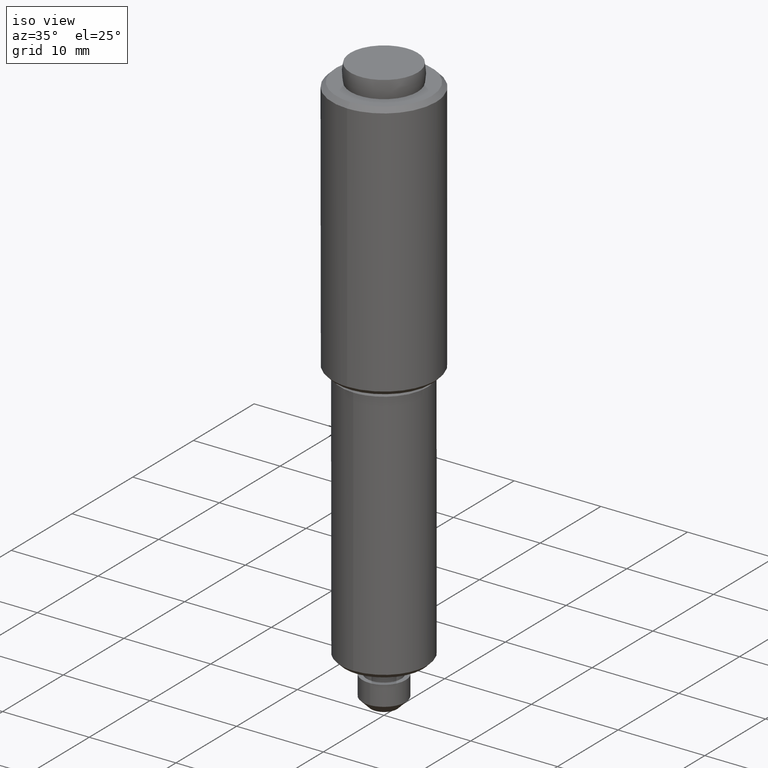
[diagram: clean part render]
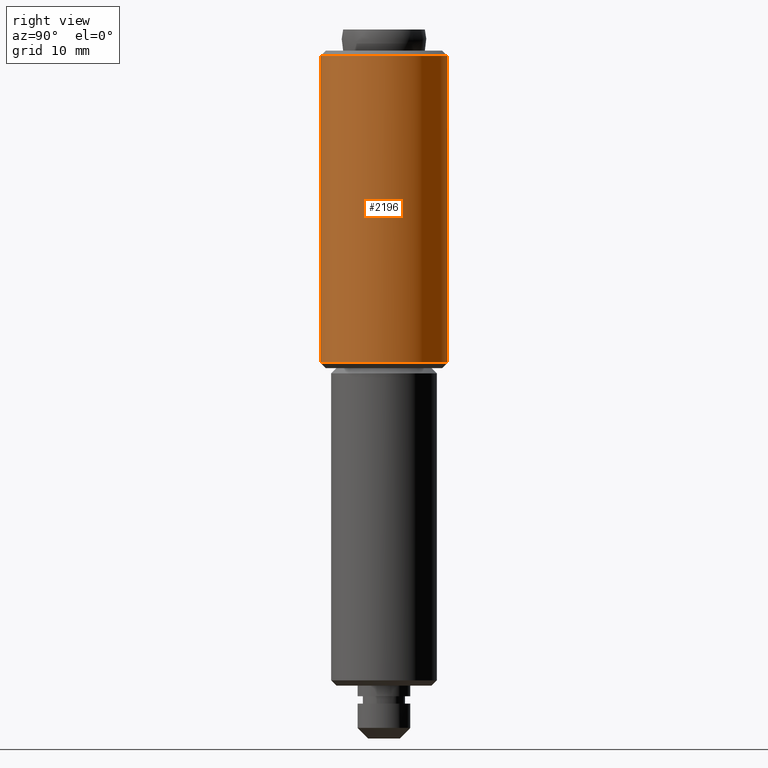
[diagram: tour spotlight — one face highlighted and labeled with its STEP entity id]
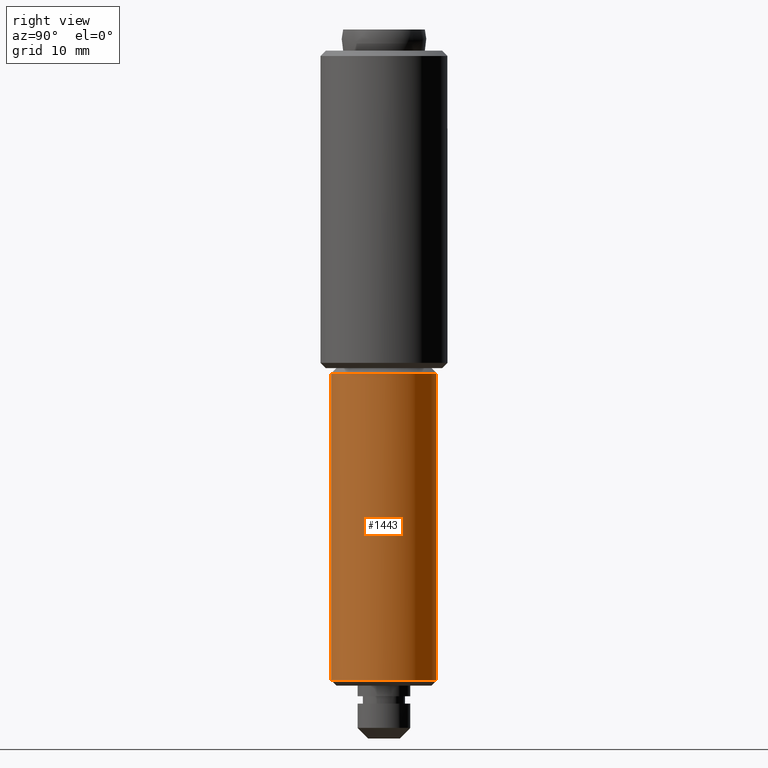
[diagram: tour spotlight — one face highlighted and labeled with its STEP entity id]
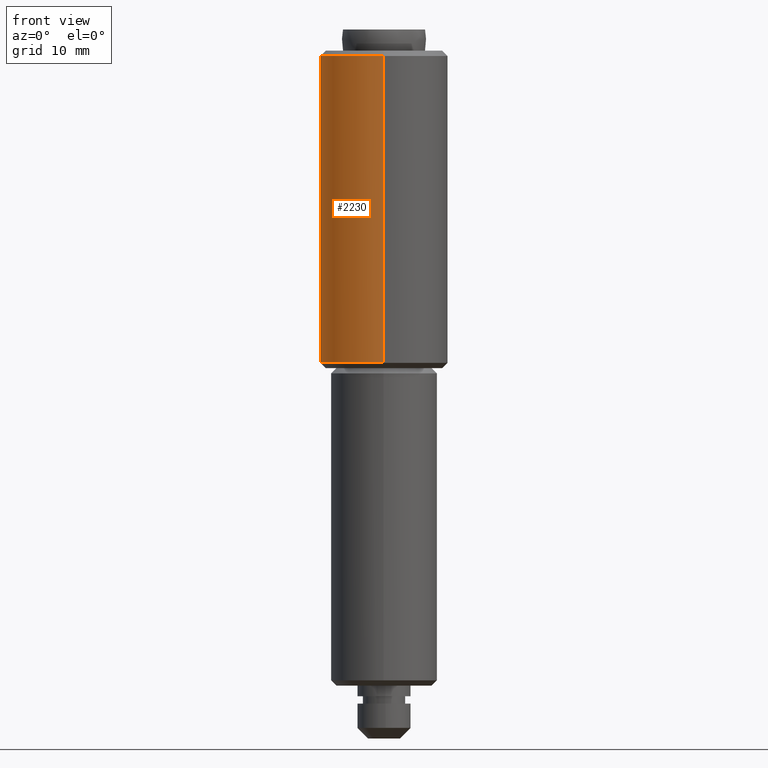
[diagram: tour spotlight — one face highlighted and labeled with its STEP entity id]
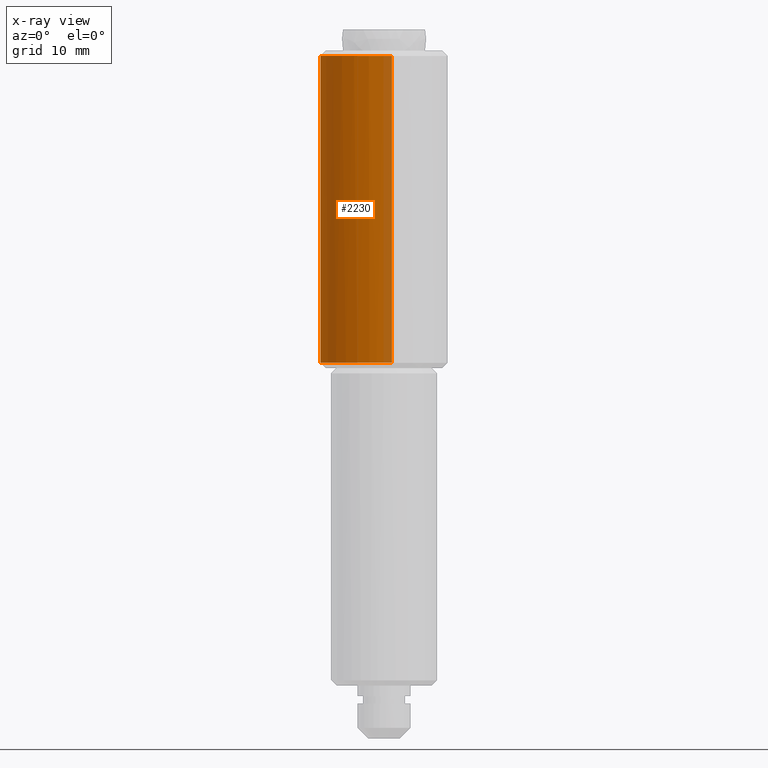
[diagram: x-ray of the same camera — body ghosted, this tour face saturated]
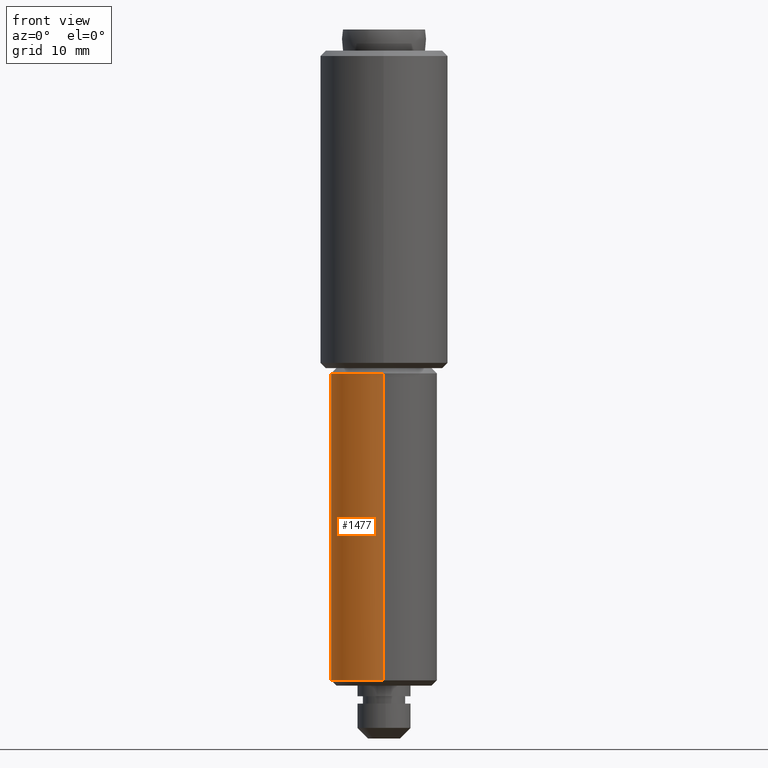
[diagram: tour spotlight — one face highlighted and labeled with its STEP entity id]
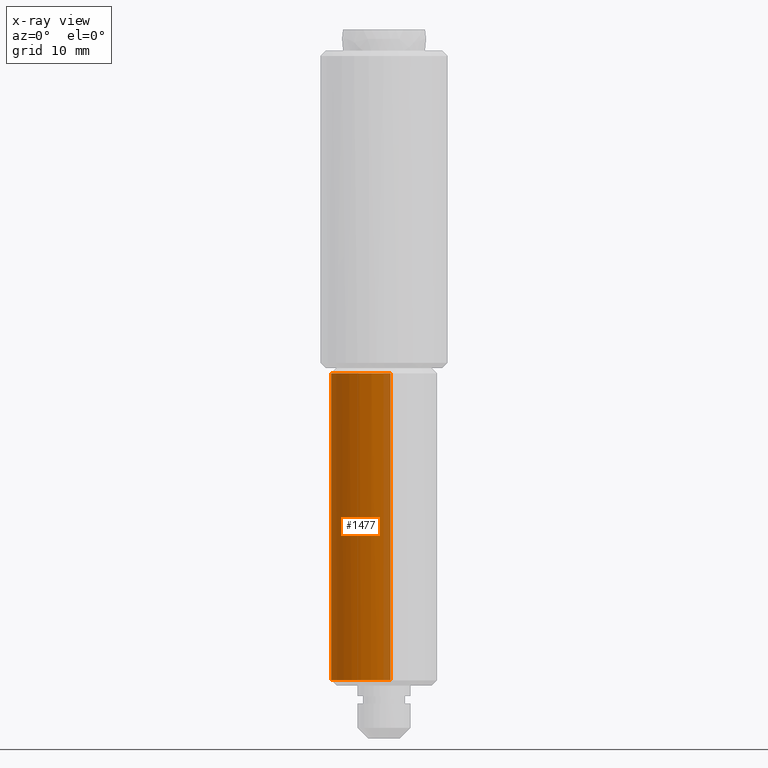
[diagram: x-ray of the same camera — body ghosted, this tour face saturated]
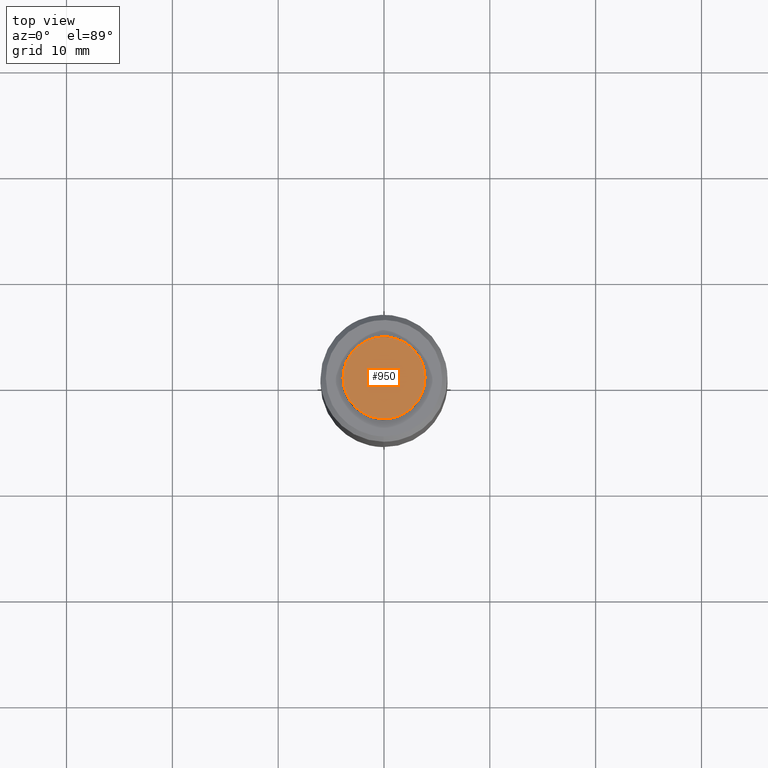
[diagram: tour spotlight — one face highlighted and labeled with its STEP entity id]
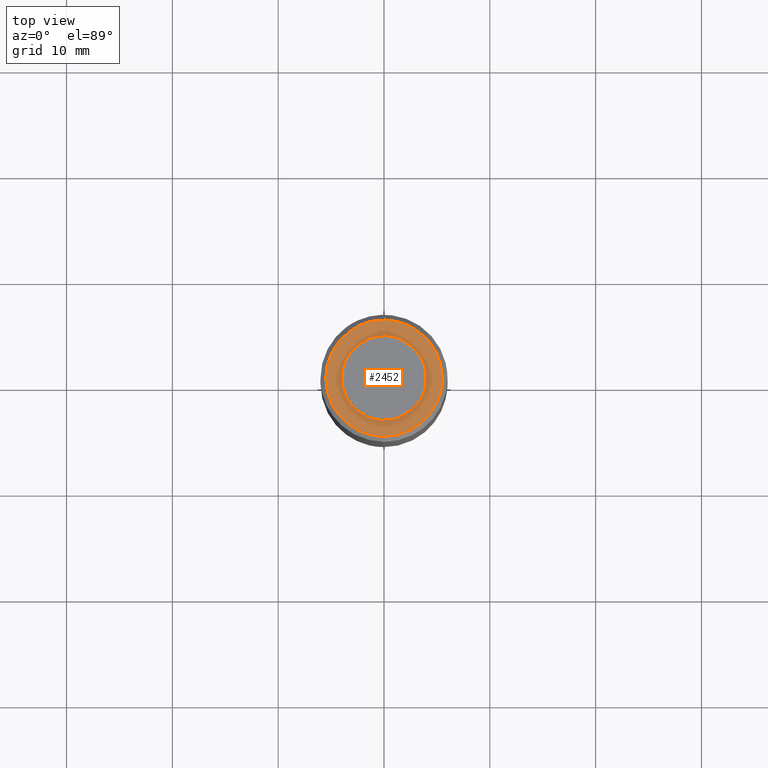
[diagram: tour spotlight — one face highlighted and labeled with its STEP entity id]
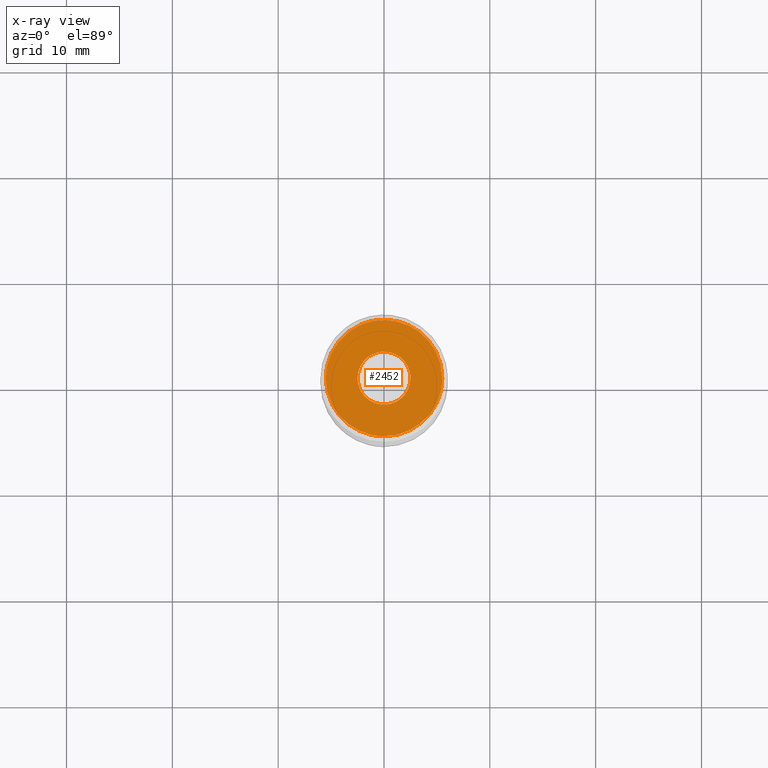
[diagram: x-ray of the same camera — body ghosted, this tour face saturated]
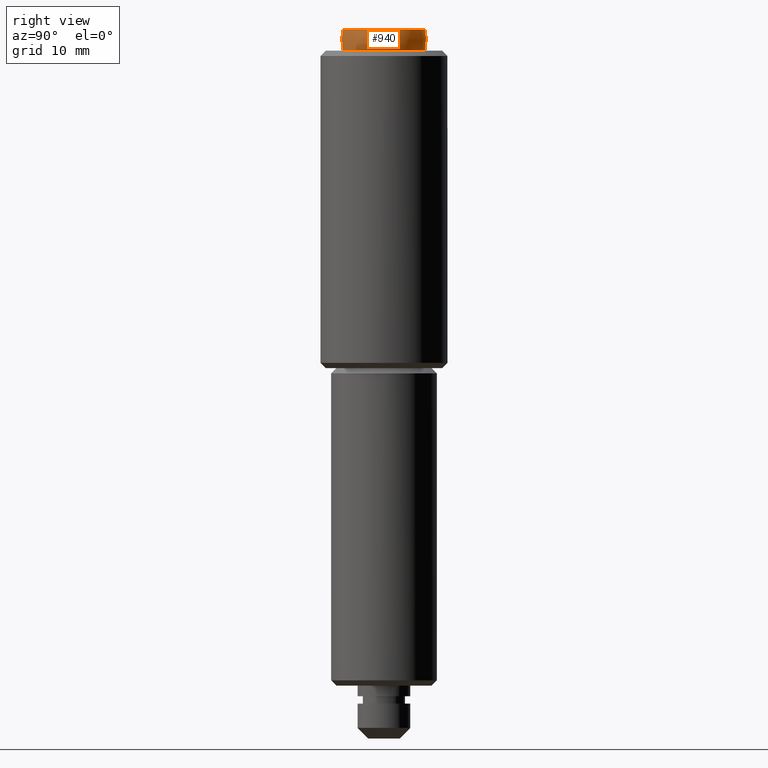
[diagram: tour spotlight — one face highlighted and labeled with its STEP entity id]
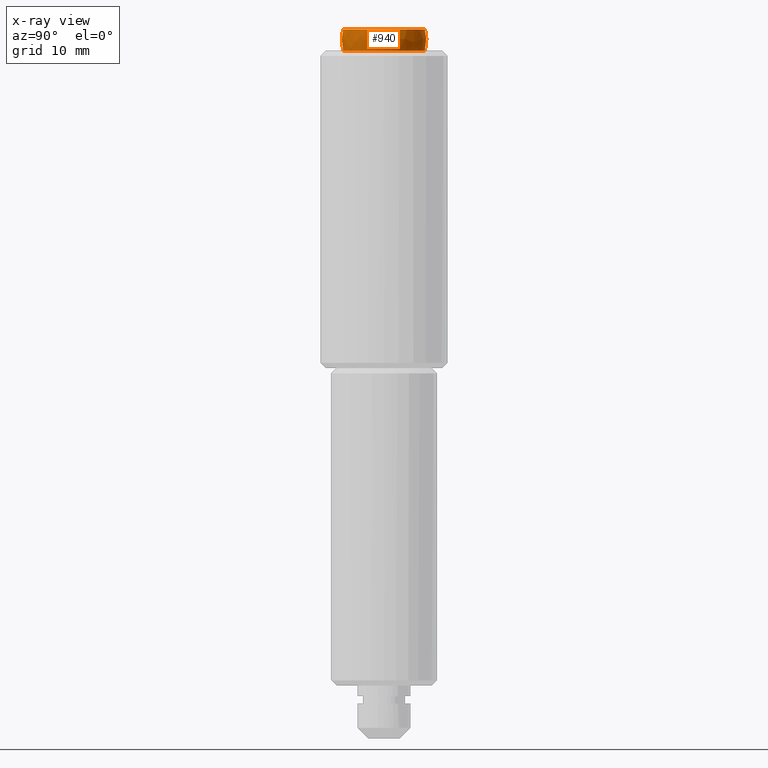
[diagram: x-ray of the same camera — body ghosted, this tour face saturated]
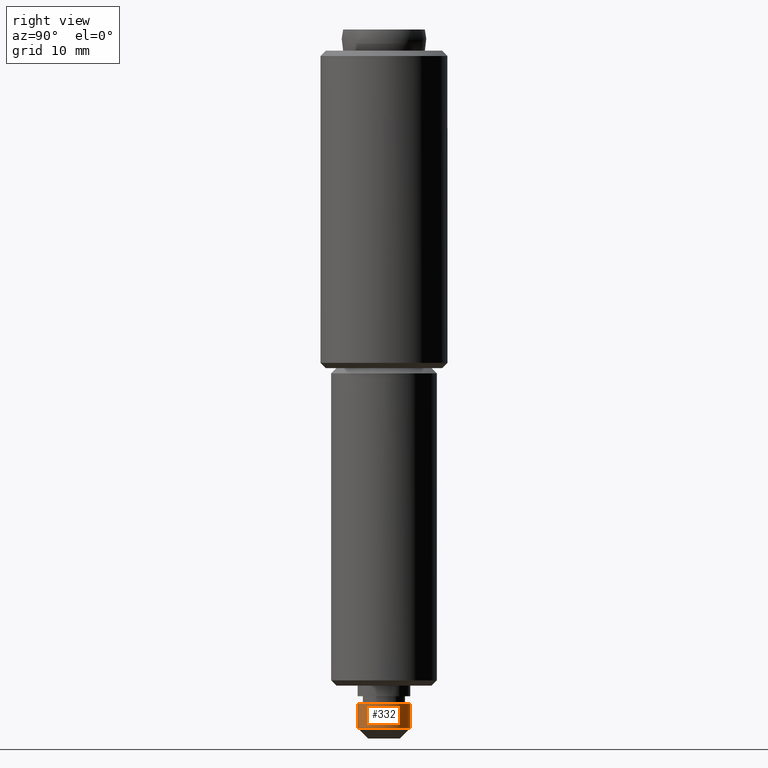
[diagram: tour spotlight — one face highlighted and labeled with its STEP entity id]
A machine part: a face-by-face anatomy tour. The part has 34 B-rep faces; the first image is the clean iso view, then the 8 largest visible faces are spotlighted one at a time (largest first), each with its STEP entity span.

Face 1 — right view, entity #2196. In plain terms, the highlighted face is a freeform B-spline surface patch.
Definition (entity closure, byte-faithful):
#1765=CARTESIAN_POINT('',(0.744758561494347,5.953598465213299,64.500000000000000));
#1766=VERTEX_POINT('',#1765);
#1823=CARTESIAN_POINT('',(-0.052359213022021,-5.999771538384714,64.500000000000028));
#1824=VERTEX_POINT('',#1823);
#1830=CARTESIAN_POINT('',(6.0,0.0,64.500000000000000));
#1831=VERTEX_POINT('',#1830);
#1832=CARTESIAN_POINT('',(6.0,0.0,64.500000000000000));
#1833=CARTESIAN_POINT('',(6.0,-6.0,64.500000000000000));
#1834=CARTESIAN_POINT('',(0.0,-6.0,64.500000000000000));
#1835=CARTESIAN_POINT('',(-0.026180104987775,-6.0,64.499999999999986));
#1836=CARTESIAN_POINT('',(-0.052359213022021,-5.999771538384714,64.500000000000028));
#1844=(BOUNDED_CURVE()B_SPLINE_CURVE(2,(#1832,#1833,#1834,#1835,#1836),.UNSPECIFIED.,.F.,.U.)B_SPLINE_CURVE_WITH_KNOTS((3,2,3),(0.500000000000000,0.750000000000000,0.751539894338719),.UNSPECIFIED.)CURVE()GEOMETRIC_REPRESENTATION_ITEM()RATIONAL_B_SPLINE_CURVE((1.0,0.707106781186548,1.0,0.998195901562000,0.996414028091769))REPRESENTATION_ITEM(''));
#1845=EDGE_CURVE('',#1831,#1824,#1844,.T.);
#1847=CARTESIAN_POINT('',(0.744758561494347,5.953598465213299,64.499999999999986));
#1848=CARTESIAN_POINT('',(6.0,5.296200073825249,64.500000000000000));
#1849=CARTESIAN_POINT('',(6.0,0.0,64.500000000000000));
#1857=(BOUNDED_CURVE()B_SPLINE_CURVE(2,(#1847,#1848,#1849),.UNSPECIFIED.,.F.,.U.)B_SPLINE_CURVE_WITH_KNOTS((3,3),(0.271473661255216,0.500000000000000),.UNSPECIFIED.)CURVE()GEOMETRIC_REPRESENTATION_ITEM()RATIONAL_B_SPLINE_CURVE((0.954005949807644,0.732264740245548,1.0))REPRESENTATION_ITEM(''));
#1858=EDGE_CURVE('',#1766,#1831,#1857,.T.);
#2048=CARTESIAN_POINT('',(0.744768012531684,5.953597282946639,35.500000000000000));
#2049=VERTEX_POINT('',#2048);
#2065=CARTESIAN_POINT('',(6.0,0.0,35.500000000000000));
#2066=VERTEX_POINT('',#2065);
#2067=CARTESIAN_POINT('',(6.0,0.0,35.500000000000000));
#2068=CARTESIAN_POINT('',(6.000000000000003,5.296191600806900,35.500000000000000));
#2069=CARTESIAN_POINT('',(0.744768012531684,5.953597282946640,35.500000000000007));
#2077=(BOUNDED_CURVE()B_SPLINE_CURVE(2,(#2067,#2068,#2069),.UNSPECIFIED.,.F.,.U.)B_SPLINE_CURVE_WITH_KNOTS((3,3),(0.500000000000000,0.728526071026314),.UNSPECIFIED.)CURVE()GEOMETRIC_REPRESENTATION_ITEM()RATIONAL_B_SPLINE_CURVE((1.0,0.732265053897245,0.954005430268926))REPRESENTATION_ITEM(''));
#2078=EDGE_CURVE('',#2066,#2049,#2077,.T.);
#2080=CARTESIAN_POINT('',(-0.052359213044773,-5.999771538384551,35.500000000000000));
#2081=VERTEX_POINT('',#2080);
#2082=CARTESIAN_POINT('',(-0.052359213044773,-5.999771538384551,35.500000000000000));
#2083=CARTESIAN_POINT('',(-0.026180104978742,-6.0,35.500000000000000));
#2084=CARTESIAN_POINT('',(0.0,-6.0,35.500000000000000));
#2085=CARTESIAN_POINT('',(6.0,-6.0,35.500000000000000));
#2086=CARTESIAN_POINT('',(6.0,0.0,35.500000000000000));
#2094=(BOUNDED_CURVE()B_SPLINE_CURVE(2,(#2082,#2083,#2084,#2085,#2086),.UNSPECIFIED.,.F.,.U.)B_SPLINE_CURVE_WITH_KNOTS((3,2,3),(0.248460105661811,0.250000000000000,0.500000000000000),.UNSPECIFIED.)CURVE()GEOMETRIC_REPRESENTATION_ITEM()RATIONAL_B_SPLINE_CURVE((0.996414028092996,0.998195901562621,1.0,0.707106781186548,1.0))REPRESENTATION_ITEM(''));
#2095=EDGE_CURVE('',#2081,#2066,#2094,.T.);
#2158=CARTESIAN_POINT('',(0.660702988506187,5.964113436103609,65.225000000000009));
#2159=CARTESIAN_POINT('',(0.702631995100168,5.958868307583474,65.225000000000009));
#2160=CARTESIAN_POINT('',(6.046396983014668,5.290387548799326,65.225000000000009));
#2161=CARTESIAN_POINT('',(5.999771538385026,-0.052359212990243,65.225000000000009));
#2162=CARTESIAN_POINT('',(5.947412325394783,-6.052130751375269,65.225000000000009));
#2163=CARTESIAN_POINT('',(-0.092972838205489,-5.999417108647267,65.224999999999980));
#2164=CARTESIAN_POINT('',(-0.133359347750879,-5.999064660917934,65.224999999999980));
#2165=CARTESIAN_POINT('',(0.660702988506187,5.964113436103609,34.756875000000008));
#2166=CARTESIAN_POINT('',(0.702631995100168,5.958868307583474,34.756874999999987));
#2167=CARTESIAN_POINT('',(6.046396983014668,5.290387548799326,34.756874999999994));
#2168=CARTESIAN_POINT('',(5.999771538385026,-0.052359212990243,34.756874999999987));
#2169=CARTESIAN_POINT('',(5.947412325394783,-6.052130751375269,34.756874999999994));
#2170=CARTESIAN_POINT('',(-0.092972838205489,-5.999417108647267,34.756874999999972));
#2171=CARTESIAN_POINT('',(-0.133359347750879,-5.999064660917934,34.756874999999987));
#2179=(BOUNDED_SURFACE()B_SPLINE_SURFACE(2,1,((#2158,#2165),(#2159,#2166),(#2160,#2167),(#2161,#2168),(#2162,#2169),(#2163,#2170),(#2164,#2171)),.UNSPECIFIED.,.F.,.F.,.U.)B_SPLINE_SURFACE_WITH_KNOTS((3,1,2,1,3),(2,2),(0.0,0.095445533741956,9.241280990939892,19.182406487894170,19.277841343984541),(0.0,30.468125000000040),.UNSPECIFIED.)GEOMETRIC_REPRESENTATION_ITEM()RATIONAL_B_SPLINE_SURFACE(((0.961610431080663,0.961610431080663),(0.959248274635662,0.959248274635662),(0.730538238691624,0.730538238691624),(1.0,1.0),(0.707106781186548,0.707106781186548),(1.002811776412628,1.002811776412628),(1.005623552825256,1.005623552825256)))REPRESENTATION_ITEM('')SURFACE());
#2180=ORIENTED_EDGE('',*,*,#1858,.T.);
#2181=ORIENTED_EDGE('',*,*,#1845,.T.);
#2182=CARTESIAN_POINT('',(-0.052359213022021,-5.999771538384714,64.500000000000028));
#2183=CARTESIAN_POINT('',(-0.052359213044773,-5.999771538384551,35.500000000000000));
#2184=QUASI_UNIFORM_CURVE('',1,(#2182,#2183),.UNSPECIFIED.,.F.,.U.);
#2185=EDGE_CURVE('',#1824,#2081,#2184,.T.);
#2186=ORIENTED_EDGE('',*,*,#2185,.T.);
#2187=ORIENTED_EDGE('',*,*,#2095,.T.);
#2188=ORIENTED_EDGE('',*,*,#2078,.T.);
#2189=CARTESIAN_POINT('',(0.744758561494347,5.953598465213299,64.500000000000000));
#2190=CARTESIAN_POINT('',(0.744768012531684,5.953597282946639,35.500000000000000));
#2191=QUASI_UNIFORM_CURVE('',1,(#2189,#2190),.UNSPECIFIED.,.F.,.U.);
#2192=EDGE_CURVE('',#1766,#2049,#2191,.T.);
#2193=ORIENTED_EDGE('',*,*,#2192,.F.);
#2194=EDGE_LOOP('',(#2180,#2181,#2186,#2187,#2188,#2193));
#2195=FACE_OUTER_BOUND('',#2194,.T.);
#2196=ADVANCED_FACE('',(#2195),#2179,.T.);

Face 2 — right view, entity #1443. In plain terms, the highlighted face is a freeform B-spline surface patch.
Definition (entity closure, byte-faithful):
#1016=CARTESIAN_POINT('',(0.620640010452552,4.961331069121012,34.500000000000000));
#1017=VERTEX_POINT('',#1016);
#1074=CARTESIAN_POINT('',(-0.043632677539347,-4.999809615320394,34.500000000000043));
#1075=VERTEX_POINT('',#1074);
#1081=CARTESIAN_POINT('',(5.0,0.0,34.500000000000000));
#1082=VERTEX_POINT('',#1081);
#1083=CARTESIAN_POINT('',(5.0,0.0,34.500000000000000));
#1084=CARTESIAN_POINT('',(5.000000000000001,-5.000000000000001,34.500000000000000));
#1085=CARTESIAN_POINT('',(0.0,-5.0,34.500000000000000));
#1086=CARTESIAN_POINT('',(-0.021816754198458,-5.0,34.500000000000000));
#1087=CARTESIAN_POINT('',(-0.043632677539347,-4.999809615320394,34.500000000000043));
#1095=(BOUNDED_CURVE()B_SPLINE_CURVE(2,(#1083,#1084,#1085,#1086,#1087),.UNSPECIFIED.,.F.,.U.)B_SPLINE_CURVE_WITH_KNOTS((3,2,3),(0.500000000000000,0.750000000000000,0.751539894341677),.UNSPECIFIED.)CURVE()GEOMETRIC_REPRESENTATION_ITEM()RATIONAL_B_SPLINE_CURVE((1.0,0.707106781186548,1.0,0.998195901558535,0.996414028084924))REPRESENTATION_ITEM(''));
#1096=EDGE_CURVE('',#1082,#1075,#1095,.T.);
#1098=CARTESIAN_POINT('',(0.620640010452552,4.961331069121012,34.499999999999993));
#1099=CARTESIAN_POINT('',(5.000000000000001,4.413493000655387,34.500000000000007));
#1100=CARTESIAN_POINT('',(5.0,0.0,34.500000000000000));
#1108=(BOUNDED_CURVE()B_SPLINE_CURVE(2,(#1098,#1099,#1100),.UNSPECIFIED.,.F.,.U.)B_SPLINE_CURVE_WITH_KNOTS((3,3),(0.271473928974332,0.500000000000000),.UNSPECIFIED.)CURVE()GEOMETRIC_REPRESENTATION_ITEM()RATIONAL_B_SPLINE_CURVE((0.954005430267673,0.732265053898002,1.0))REPRESENTATION_ITEM(''));
#1109=EDGE_CURVE('',#1017,#1082,#1108,.T.);
#1299=CARTESIAN_POINT('',(0.620640010475305,4.961331069118167,5.500000000000000));
#1300=VERTEX_POINT('',#1299);
#1316=CARTESIAN_POINT('',(5.0,0.0,5.500000000000000));
#1317=VERTEX_POINT('',#1316);
#1318=CARTESIAN_POINT('',(5.0,0.0,5.500000000000000));
#1319=CARTESIAN_POINT('',(4.999999999999999,4.413493000614615,5.500000000000000));
#1320=CARTESIAN_POINT('',(0.620640010475305,4.961331069118168,5.500000000000001));
#1328=(BOUNDED_CURVE()B_SPLINE_CURVE(2,(#1318,#1319,#1320),.UNSPECIFIED.,.F.,.U.)B_SPLINE_CURVE_WITH_KNOTS((3,3),(0.500000000000000,0.728526071024122),.UNSPECIFIED.)CURVE()GEOMETRIC_REPRESENTATION_ITEM()RATIONAL_B_SPLINE_CURVE((1.0,0.732265053899813,0.954005430264673))REPRESENTATION_ITEM(''));
#1329=EDGE_CURVE('',#1317,#1300,#1328,.T.);
#1331=CARTESIAN_POINT('',(-0.043632677575075,-4.999809615320130,5.500000000000001));
#1332=VERTEX_POINT('',#1331);
#1333=CARTESIAN_POINT('',(-0.043632677575075,-4.999809615320130,5.500000000000001));
#1334=CARTESIAN_POINT('',(-0.021816754186718,-5.0,5.499999999999999));
#1335=CARTESIAN_POINT('',(0.0,-5.0,5.500000000000000));
#1336=CARTESIAN_POINT('',(5.000000000000001,-5.000000000000001,5.500000000000001));
#1337=CARTESIAN_POINT('',(5.0,0.0,5.500000000000000));
#1345=(BOUNDED_CURVE()B_SPLINE_CURVE(2,(#1333,#1334,#1335,#1336,#1337),.UNSPECIFIED.,.F.,.U.)B_SPLINE_CURVE_WITH_KNOTS((3,2,3),(0.248460105659150,0.250000000000000,0.500000000000000),.UNSPECIFIED.)CURVE()GEOMETRIC_REPRESENTATION_ITEM()RATIONAL_B_SPLINE_CURVE((0.996414028086838,0.998195901559504,1.0,0.707106781186548,1.0))REPRESENTATION_ITEM(''));
#1346=EDGE_CURVE('',#1332,#1317,#1345,.T.);
#1409=CARTESIAN_POINT('',(0.620640010399146,4.961331069127693,35.225000000000001));
#1410=CARTESIAN_POINT('',(5.038664152512223,4.408656290666105,35.225000000000016));
#1411=CARTESIAN_POINT('',(4.999809615320855,-0.043632677491869,35.225000000000009));
#1412=CARTESIAN_POINT('',(4.956176937828985,-5.043442292812725,35.225000000000016));
#1413=CARTESIAN_POINT('',(-0.043632677491869,-4.999809615320855,35.225000000000009));
#1414=CARTESIAN_POINT('',(0.620640010399146,4.961331069127693,4.756875000000001));
#1415=CARTESIAN_POINT('',(5.038664152512223,4.408656290666105,4.756875000000001));
#1416=CARTESIAN_POINT('',(4.999809615320855,-0.043632677491869,4.756875000000001));
#1417=CARTESIAN_POINT('',(4.956176937828985,-5.043442292812725,4.756875000000001));
#1418=CARTESIAN_POINT('',(-0.043632677491869,-4.999809615320855,4.756875000000001));
#1426=(BOUNDED_SURFACE()B_SPLINE_SURFACE(2,1,((#1409,#1414),(#1410,#1415),(#1411,#1416),(#1412,#1417),(#1413,#1418)),.UNSPECIFIED.,.F.,.F.,.U.)B_SPLINE_SURFACE_WITH_KNOTS((3,2,3),(2,2),(0.0,7.621529547664946,15.905800795126851),(0.0,30.468125000000011),.UNSPECIFIED.)GEOMETRIC_REPRESENTATION_ITEM()RATIONAL_B_SPLINE_SURFACE(((0.956886118190660,0.956886118190660),(0.730538238691624,0.730538238691624),(1.0,1.0),(0.707106781186548,0.707106781186548),(1.0,1.0)))REPRESENTATION_ITEM('')SURFACE());
#1427=ORIENTED_EDGE('',*,*,#1109,.T.);
#1428=ORIENTED_EDGE('',*,*,#1096,.T.);
#1429=CARTESIAN_POINT('',(-0.043632677539347,-4.999809615320394,34.500000000000043));
#1430=CARTESIAN_POINT('',(-0.043632677575075,-4.999809615320130,5.500000000000001));
#1431=QUASI_UNIFORM_CURVE('',1,(#1429,#1430),.UNSPECIFIED.,.F.,.U.);
#1432=EDGE_CURVE('',#1075,#1332,#1431,.T.);
#1433=ORIENTED_EDGE('',*,*,#1432,.T.);
#1434=ORIENTED_EDGE('',*,*,#1346,.T.);
#1435=ORIENTED_EDGE('',*,*,#1329,.T.);
#1436=CARTESIAN_POINT('',(0.620640010452552,4.961331069121012,34.500000000000000));
#1437=CARTESIAN_POINT('',(0.620640010475305,4.961331069118167,5.500000000000000));
#1438=QUASI_UNIFORM_CURVE('',1,(#1436,#1437),.UNSPECIFIED.,.F.,.U.);
#1439=EDGE_CURVE('',#1017,#1300,#1438,.T.);
#1440=ORIENTED_EDGE('',*,*,#1439,.F.);
#1441=EDGE_LOOP('',(#1427,#1428,#1433,#1434,#1435,#1440));
#1442=FACE_OUTER_BOUND('',#1441,.T.);
#1443=ADVANCED_FACE('',(#1442),#1426,.T.);

Face 3 — front view, entity #2230. An x-ray twin of the same camera follows (body ghosted, this face saturated) — the face is partly hidden behind the body. In plain terms, the highlighted face is a freeform B-spline surface patch.
Definition (entity closure, byte-faithful):
#1763=CARTESIAN_POINT('',(-2.425292591935195,5.487982857436114,64.499999999999304));
#1764=VERTEX_POINT('',#1763);
#1765=CARTESIAN_POINT('',(0.744758561494347,5.953598465213299,64.500000000000000));
#1766=VERTEX_POINT('',#1765);
#1767=CARTESIAN_POINT('',(-2.425292591935196,5.487982857436114,64.499999999999304));
#1768=CARTESIAN_POINT('',(-1.266693703520049,6.0,64.500000000000014));
#1769=CARTESIAN_POINT('',(0.0,6.0,64.500000000000000));
#1770=CARTESIAN_POINT('',(0.373824784392168,5.999999999999999,64.499999999999986));
#1771=CARTESIAN_POINT('',(0.744758561494347,5.953598465213299,64.499999999999986));
#1779=(BOUNDED_CURVE()B_SPLINE_CURVE(2,(#1767,#1768,#1769,#1770,#1771),.UNSPECIFIED.,.F.,.U.)B_SPLINE_CURVE_WITH_KNOTS((3,2,3),(0.181361578459497,0.250000000000000,0.271473661255216),.UNSPECIFIED.)CURVE()GEOMETRIC_REPRESENTATION_ITEM()RATIONAL_B_SPLINE_CURVE((0.883326595751424,0.919585087122910,1.0,0.974842040941000,0.954005949807644))REPRESENTATION_ITEM(''));
#1780=EDGE_CURVE('',#1764,#1766,#1779,.T.);
#1823=CARTESIAN_POINT('',(-0.052359213022021,-5.999771538384714,64.500000000000028));
#1824=VERTEX_POINT('',#1823);
#1881=CARTESIAN_POINT('',(-6.0,0.0,64.500000000000000));
#1882=VERTEX_POINT('',#1881);
#1883=CARTESIAN_POINT('',(-6.0,0.0,64.500000000000000));
#1884=CARTESIAN_POINT('',(-6.0,3.908220015537823,64.500000000000014));
#1885=CARTESIAN_POINT('',(-2.425292591935196,5.487982857436114,64.499999999999304));
#1893=(BOUNDED_CURVE()B_SPLINE_CURVE(2,(#1883,#1884,#1885),.UNSPECIFIED.,.F.,.U.)B_SPLINE_CURVE_WITH_KNOTS((3,3),(0.0,0.181361578459497),.UNSPECIFIED.)CURVE()GEOMETRIC_REPRESENTATION_ITEM()RATIONAL_B_SPLINE_CURVE((1.0,0.787521694063637,0.883326595751424))REPRESENTATION_ITEM(''));
#1894=EDGE_CURVE('',#1882,#1764,#1893,.T.);
#1896=CARTESIAN_POINT('',(-0.052359213022021,-5.999771538384714,64.500000000000028));
#1897=CARTESIAN_POINT('',(-6.000000000000001,-5.947867263443852,64.500000000000000));
#1898=CARTESIAN_POINT('',(-6.0,0.0,64.500000000000000));
#1906=(BOUNDED_CURVE()B_SPLINE_CURVE(2,(#1896,#1897,#1898),.UNSPECIFIED.,.F.,.U.)B_SPLINE_CURVE_WITH_KNOTS((3,3),(0.751539894338719,1.0),.UNSPECIFIED.)CURVE()GEOMETRIC_REPRESENTATION_ITEM()RATIONAL_B_SPLINE_CURVE((0.996414028091769,0.708910879624548,1.0))REPRESENTATION_ITEM(''));
#1907=EDGE_CURVE('',#1824,#1882,#1906,.T.);
#1968=CARTESIAN_POINT('',(-5.845308919046230,1.353648270868739,35.500000000025587));
#1969=VERTEX_POINT('',#1968);
#1970=CARTESIAN_POINT('',(-6.0,0.0,35.500000000000000));
#1971=VERTEX_POINT('',#1970);
#1972=CARTESIAN_POINT('',(-5.845308919046230,1.353648270868739,35.500000000025587));
#1973=CARTESIAN_POINT('',(-6.0,0.685662964304165,35.500000000000000));
#1974=CARTESIAN_POINT('',(-6.0,0.0,35.500000000000000));
#1982=(BOUNDED_CURVE()B_SPLINE_CURVE(2,(#1972,#1973,#1974),.UNSPECIFIED.,.F.,.U.)B_SPLINE_CURVE_WITH_KNOTS((3,3),(0.961422971772483,1.0),.UNSPECIFIED.)CURVE()GEOMETRIC_REPRESENTATION_ITEM()RATIONAL_B_SPLINE_CURVE((0.923556557423140,0.954804200120740,1.0))REPRESENTATION_ITEM(''));
#1983=EDGE_CURVE('',#1969,#1971,#1982,.T.);
#2041=CARTESIAN_POINT('',(-0.052359213351879,5.999771538431189,35.500000000049297));
#2042=VERTEX_POINT('',#2041);
#2048=CARTESIAN_POINT('',(0.744768012531684,5.953597282946639,35.500000000000000));
#2049=VERTEX_POINT('',#2048);
#2050=CARTESIAN_POINT('',(0.744768012531684,5.953597282946639,35.499999999999993));
#2051=CARTESIAN_POINT('',(0.373829565254291,6.000000000000001,35.500000000000007));
#2052=CARTESIAN_POINT('',(0.0,6.0,35.500000000000000));
#2053=CARTESIAN_POINT('',(-0.026180105285428,6.000000000000001,35.500000000000000));
#2054=CARTESIAN_POINT('',(-0.052359213351879,5.999771538431189,35.500000000049290));
#2062=(BOUNDED_CURVE()B_SPLINE_CURVE(2,(#2050,#2051,#2052,#2053,#2054),.UNSPECIFIED.,.F.,.U.)B_SPLINE_CURVE_WITH_KNOTS((3,2,3),(0.728526071026313,0.750000000000000,0.751539894356195),.UNSPECIFIED.)CURVE()GEOMETRIC_REPRESENTATION_ITEM()RATIONAL_B_SPLINE_CURVE((0.954005430268924,0.974841727289301,1.0,0.998195901541525,0.996414028051324))REPRESENTATION_ITEM(''));
#2063=EDGE_CURVE('',#2049,#2042,#2062,.T.);
#2080=CARTESIAN_POINT('',(-0.052359213044773,-5.999771538384551,35.500000000000000));
#2081=VERTEX_POINT('',#2080);
#2097=CARTESIAN_POINT('',(-6.0,0.0,35.500000000000000));
#2098=CARTESIAN_POINT('',(-6.000000000000001,-5.947867263461753,35.499999999999993));
#2099=CARTESIAN_POINT('',(-0.052359213044773,-5.999771538384551,35.500000000000000));
#2107=(BOUNDED_CURVE()B_SPLINE_CURVE(2,(#2097,#2098,#2099),.UNSPECIFIED.,.F.,.U.)B_SPLINE_CURVE_WITH_KNOTS((3,3),(0.0,0.248460105661811),.UNSPECIFIED.)CURVE()GEOMETRIC_REPRESENTATION_ITEM()RATIONAL_B_SPLINE_CURVE((1.0,0.708910879623927,0.996414028092996))REPRESENTATION_ITEM(''));
#2108=EDGE_CURVE('',#1971,#2081,#2107,.T.);
#2127=CARTESIAN_POINT('',(-0.052359213351879,5.999771538431189,35.500000000049297));
#2128=CARTESIAN_POINT('',(-4.778918510675537,5.958523479719795,35.500000000000000));
#2129=CARTESIAN_POINT('',(-5.845308919046230,1.353648270868739,35.500000000025587));
#2137=(BOUNDED_CURVE()B_SPLINE_CURVE(2,(#2127,#2128,#2129),.UNSPECIFIED.,.F.,.U.)B_SPLINE_CURVE_WITH_KNOTS((3,3),(0.751539894356196,0.961422971772482),.UNSPECIFIED.)CURVE()GEOMETRIC_REPRESENTATION_ITEM()RATIONAL_B_SPLINE_CURVE((0.996414028051323,0.753549905467021,0.923556557423139))REPRESENTATION_ITEM(''));
#2138=EDGE_CURVE('',#2042,#1969,#2137,.T.);
#2182=CARTESIAN_POINT('',(-0.052359213022021,-5.999771538384714,64.500000000000028));
#2183=CARTESIAN_POINT('',(-0.052359213044773,-5.999771538384551,35.500000000000000));
#2184=QUASI_UNIFORM_CURVE('',1,(#2182,#2183),.UNSPECIFIED.,.F.,.U.);
#2185=EDGE_CURVE('',#1824,#2081,#2184,.T.);
#2189=CARTESIAN_POINT('',(0.744758561494347,5.953598465213299,64.500000000000000));
#2190=CARTESIAN_POINT('',(0.744768012531684,5.953597282946639,35.500000000000000));
#2191=QUASI_UNIFORM_CURVE('',1,(#2189,#2190),.UNSPECIFIED.,.F.,.U.);
#2192=EDGE_CURVE('',#1766,#2049,#2191,.T.);
#2197=CARTESIAN_POINT('',(-0.052359212990243,-5.999771538385026,65.225000000000009));
#2198=CARTESIAN_POINT('',(-6.052130751375269,-5.947412325394783,65.225000000000009));
#2199=CARTESIAN_POINT('',(-5.999771538385026,0.052359212990243,65.225000000000009));
#2200=CARTESIAN_POINT('',(-5.947412325394783,6.052130751375269,65.225000000000009));
#2201=CARTESIAN_POINT('',(0.052359212990243,5.999771538385026,65.225000000000009));
#2202=CARTESIAN_POINT('',(0.399900953749042,5.996738587561654,65.225000000000009));
#2203=CARTESIAN_POINT('',(0.744768012478976,5.953597282953231,65.225000000000009));
#2204=CARTESIAN_POINT('',(-0.052359212990243,-5.999771538385026,34.756874999999987));
#2205=CARTESIAN_POINT('',(-6.052130751375269,-5.947412325394783,34.756874999999994));
#2206=CARTESIAN_POINT('',(-5.999771538385026,0.052359212990243,34.756874999999987));
#2207=CARTESIAN_POINT('',(-5.947412325394783,6.052130751375269,34.756874999999994));
#2208=CARTESIAN_POINT('',(0.052359212990243,5.999771538385026,34.756874999999987));
#2209=CARTESIAN_POINT('',(0.399900953749042,5.996738587561654,34.756874999999994));
#2210=CARTESIAN_POINT('',(0.744768012478976,5.953597282953231,34.756874999999987));
#2218=(BOUNDED_SURFACE()B_SPLINE_SURFACE(2,1,((#2197,#2204),(#2198,#2205),(#2199,#2206),(#2200,#2207),(#2201,#2208),(#2202,#2209),(#2203,#2210)),.UNSPECIFIED.,.F.,.F.,.U.)B_SPLINE_SURFACE_WITH_KNOTS((3,2,2,3),(2,2),(0.0,9.941125496954278,19.882250993908560,20.677541033664902),(0.0,30.468125000000018),.UNSPECIFIED.)GEOMETRIC_REPRESENTATION_ITEM()RATIONAL_B_SPLINE_SURFACE(((1.0,1.0),(0.707106781186548,0.707106781186548),(1.0,1.0),(0.707106781186548,0.707106781186548),(1.0,1.0),(0.976568542494924,0.976568542494924),(0.956886118190660,0.956886118190660)))REPRESENTATION_ITEM('')SURFACE());
#2219=ORIENTED_EDGE('',*,*,#1894,.T.);
#2220=ORIENTED_EDGE('',*,*,#1780,.T.);
#2221=ORIENTED_EDGE('',*,*,#2192,.T.);
#2222=ORIENTED_EDGE('',*,*,#2063,.T.);
#2223=ORIENTED_EDGE('',*,*,#2138,.T.);
#2224=ORIENTED_EDGE('',*,*,#1983,.T.);
#2225=ORIENTED_EDGE('',*,*,#2108,.T.);
#2226=ORIENTED_EDGE('',*,*,#2185,.F.);
#2227=ORIENTED_EDGE('',*,*,#1907,.T.);
#2228=EDGE_LOOP('',(#2219,#2220,#2221,#2222,#2223,#2224,#2225,#2226,#2227));
#2229=FACE_OUTER_BOUND('',#2228,.T.);
#2230=ADVANCED_FACE('',(#2229),#2218,.T.);

Face 4 — front view, entity #1477. An x-ray twin of the same camera follows (body ghosted, this face saturated) — the face is partly hidden behind the body. In plain terms, the highlighted face is a freeform B-spline surface patch.
Definition (entity closure, byte-faithful):
#1014=CARTESIAN_POINT('',(-2.021077160057892,4.573319047824802,34.499999999989512));
#1015=VERTEX_POINT('',#1014);
#1016=CARTESIAN_POINT('',(0.620640010452552,4.961331069121012,34.500000000000000));
#1017=VERTEX_POINT('',#1016);
#1018=CARTESIAN_POINT('',(-2.021077160057892,4.573319047824802,34.499999999989519));
#1019=CARTESIAN_POINT('',(-1.055578086389925,5.0,34.499999999999993));
#1020=CARTESIAN_POINT('',(0.0,5.0,34.500000000000000));
#1021=CARTESIAN_POINT('',(0.311524637721501,5.0,34.499999999999993));
#1022=CARTESIAN_POINT('',(0.620640010452552,4.961331069121012,34.500000000000000));
#1030=(BOUNDED_CURVE()B_SPLINE_CURVE(2,(#1018,#1019,#1020,#1021,#1022),.UNSPECIFIED.,.F.,.U.)B_SPLINE_CURVE_WITH_KNOTS((3,2,3),(0.181361578452130,0.250000000000000,0.271473928974332),.UNSPECIFIED.)CURVE()GEOMETRIC_REPRESENTATION_ITEM()RATIONAL_B_SPLINE_CURVE((0.883326595743640,0.919585087114278,1.0,0.974841727288546,0.954005430267673))REPRESENTATION_ITEM(''));
#1031=EDGE_CURVE('',#1015,#1017,#1030,.T.);
#1074=CARTESIAN_POINT('',(-0.043632677539347,-4.999809615320394,34.500000000000043));
#1075=VERTEX_POINT('',#1074);
#1132=CARTESIAN_POINT('',(-5.0,0.0,34.500000000000000));
#1133=VERTEX_POINT('',#1132);
#1134=CARTESIAN_POINT('',(-5.0,0.0,34.500000000000000));
#1135=CARTESIAN_POINT('',(-5.000000000000001,3.256850012780176,34.499999999999993));
#1136=CARTESIAN_POINT('',(-2.021077160057892,4.573319047824801,34.499999999989519));
#1144=(BOUNDED_CURVE()B_SPLINE_CURVE(2,(#1134,#1135,#1136),.UNSPECIFIED.,.F.,.U.)B_SPLINE_CURVE_WITH_KNOTS((3,3),(0.0,0.181361578452129),.UNSPECIFIED.)CURVE()GEOMETRIC_REPRESENTATION_ITEM()RATIONAL_B_SPLINE_CURVE((1.0,0.787521694072269,0.883326595743640))REPRESENTATION_ITEM(''));
#1145=EDGE_CURVE('',#1133,#1015,#1144,.T.);
#1147=CARTESIAN_POINT('',(-0.043632677539347,-4.999809615320394,34.500000000000036));
#1148=CARTESIAN_POINT('',(-5.000000000000001,-4.956556052786615,34.500000000000000));
#1149=CARTESIAN_POINT('',(-5.0,0.0,34.500000000000000));
#1157=(BOUNDED_CURVE()B_SPLINE_CURVE(2,(#1147,#1148,#1149),.UNSPECIFIED.,.F.,.U.)B_SPLINE_CURVE_WITH_KNOTS((3,3),(0.751539894341678,1.0),.UNSPECIFIED.)CURVE()GEOMETRIC_REPRESENTATION_ITEM()RATIONAL_B_SPLINE_CURVE((0.996414028084922,0.708910879628014,1.0))REPRESENTATION_ITEM(''));
#1158=EDGE_CURVE('',#1075,#1133,#1157,.T.);
#1219=CARTESIAN_POINT('',(-4.871090765890572,1.128040225559558,5.500000000002460));
#1220=VERTEX_POINT('',#1219);
#1221=CARTESIAN_POINT('',(-5.0,0.0,5.500000000000000));
#1222=VERTEX_POINT('',#1221);
#1223=CARTESIAN_POINT('',(-4.871090765890572,1.128040225559559,5.500000000002460));
#1224=CARTESIAN_POINT('',(-5.0,0.571385803420283,5.500000000000000));
#1225=CARTESIAN_POINT('',(-5.0,0.0,5.500000000000000));
#1233=(BOUNDED_CURVE()B_SPLINE_CURVE(2,(#1223,#1224,#1225),.UNSPECIFIED.,.F.,.U.)B_SPLINE_CURVE_WITH_KNOTS((3,3),(0.961422971783217,1.0),.UNSPECIFIED.)CURVE()GEOMETRIC_REPRESENTATION_ITEM()RATIONAL_B_SPLINE_CURVE((0.923556557440530,0.954804200133317,1.0))REPRESENTATION_ITEM(''));
#1234=EDGE_CURVE('',#1220,#1222,#1233,.T.);
#1292=CARTESIAN_POINT('',(-0.043632677977058,4.999809615382741,5.500000000066091));
#1293=VERTEX_POINT('',#1292);
#1299=CARTESIAN_POINT('',(0.620640010475305,4.961331069118167,5.500000000000000));
#1300=VERTEX_POINT('',#1299);
#1301=CARTESIAN_POINT('',(0.620640010475305,4.961331069118168,5.500000000000000));
#1302=CARTESIAN_POINT('',(0.311524637744521,4.999999999999999,5.499999999999999));
#1303=CARTESIAN_POINT('',(0.0,5.0,5.500000000000000));
#1304=CARTESIAN_POINT('',(-0.021816754588134,5.0,5.500000000000000));
#1305=CARTESIAN_POINT('',(-0.043632677977058,4.999809615382741,5.500000000066091));
#1313=(BOUNDED_CURVE()B_SPLINE_CURVE(2,(#1301,#1302,#1303,#1304,#1305),.UNSPECIFIED.,.F.,.U.)B_SPLINE_CURVE_WITH_KNOTS((3,2,3),(0.728526071024121,0.750000000000000,0.751539894369132),.UNSPECIFIED.)CURVE()GEOMETRIC_REPRESENTATION_ITEM()RATIONAL_B_SPLINE_CURVE((0.954005430264671,0.974841727286734,1.0,0.998195901526369,0.996414028021385))REPRESENTATION_ITEM(''));
#1314=EDGE_CURVE('',#1300,#1293,#1313,.T.);
#1331=CARTESIAN_POINT('',(-0.043632677575075,-4.999809615320130,5.500000000000001));
#1332=VERTEX_POINT('',#1331);
#1348=CARTESIAN_POINT('',(-5.0,0.0,5.500000000000000));
#1349=CARTESIAN_POINT('',(-5.000000000000001,-4.956556052809910,5.500000000000000));
#1350=CARTESIAN_POINT('',(-0.043632677575075,-4.999809615320130,5.500000000000002));
#1358=(BOUNDED_CURVE()B_SPLINE_CURVE(2,(#1348,#1349,#1350),.UNSPECIFIED.,.F.,.U.)B_SPLINE_CURVE_WITH_KNOTS((3,3),(0.0,0.248460105659150),.UNSPECIFIED.)CURVE()GEOMETRIC_REPRESENTATION_ITEM()RATIONAL_B_SPLINE_CURVE((1.0,0.708910879627044,0.996414028086838))REPRESENTATION_ITEM(''));
#1359=EDGE_CURVE('',#1222,#1332,#1358,.T.);
#1378=CARTESIAN_POINT('',(-0.043632677977058,4.999809615382741,5.500000000066091));
#1379=CARTESIAN_POINT('',(-3.982432092563118,4.965436232807612,5.500000000000000));
#1380=CARTESIAN_POINT('',(-4.871090765890572,1.128040225559558,5.500000000002461));
#1388=(BOUNDED_CURVE()B_SPLINE_CURVE(2,(#1378,#1379,#1380),.UNSPECIFIED.,.F.,.U.)B_SPLINE_CURVE_WITH_KNOTS((3,3),(0.751539894369133,0.961422971783216),.UNSPECIFIED.)CURVE()GEOMETRIC_REPRESENTATION_ITEM()RATIONAL_B_SPLINE_CURVE((0.996414028021383,0.753549905465079,0.923556557440528))REPRESENTATION_ITEM(''));
#1389=EDGE_CURVE('',#1293,#1220,#1388,.T.);
#1429=CARTESIAN_POINT('',(-0.043632677539347,-4.999809615320394,34.500000000000043));
#1430=CARTESIAN_POINT('',(-0.043632677575075,-4.999809615320130,5.500000000000001));
#1431=QUASI_UNIFORM_CURVE('',1,(#1429,#1430),.UNSPECIFIED.,.F.,.U.);
#1432=EDGE_CURVE('',#1075,#1332,#1431,.T.);
#1436=CARTESIAN_POINT('',(0.620640010452552,4.961331069121012,34.500000000000000));
#1437=CARTESIAN_POINT('',(0.620640010475305,4.961331069118167,5.500000000000000));
#1438=QUASI_UNIFORM_CURVE('',1,(#1436,#1437),.UNSPECIFIED.,.F.,.U.);
#1439=EDGE_CURVE('',#1017,#1300,#1438,.T.);
#1444=CARTESIAN_POINT('',(-0.043632677491869,-4.999809615320855,35.225000000000009));
#1445=CARTESIAN_POINT('',(-5.043442292812725,-4.956176937828985,35.225000000000016));
#1446=CARTESIAN_POINT('',(-4.999809615320855,0.043632677491869,35.225000000000009));
#1447=CARTESIAN_POINT('',(-4.956176937828985,5.043442292812725,35.225000000000016));
#1448=CARTESIAN_POINT('',(0.043632677491869,4.999809615320855,35.225000000000009));
#1449=CARTESIAN_POINT('',(0.333250794790868,4.997282156301378,35.225000000000009));
#1450=CARTESIAN_POINT('',(0.620640010399146,4.961331069127693,35.225000000000001));
#1451=CARTESIAN_POINT('',(-0.043632677491869,-4.999809615320855,4.756875000000001));
#1452=CARTESIAN_POINT('',(-5.043442292812725,-4.956176937828985,4.756875000000001));
#1453=CARTESIAN_POINT('',(-4.999809615320855,0.043632677491869,4.756875000000001));
#1454=CARTESIAN_POINT('',(-4.956176937828985,5.043442292812725,4.756875000000001));
#1455=CARTESIAN_POINT('',(0.043632677491869,4.999809615320855,4.756875000000001));
#1456=CARTESIAN_POINT('',(0.333250794790868,4.997282156301378,4.756875000000001));
#1457=CARTESIAN_POINT('',(0.620640010399146,4.961331069127693,4.756875000000001));
#1465=(BOUNDED_SURFACE()B_SPLINE_SURFACE(2,1,((#1444,#1451),(#1445,#1452),(#1446,#1453),(#1447,#1454),(#1448,#1455),(#1449,#1456),(#1450,#1457)),.UNSPECIFIED.,.F.,.F.,.U.)B_SPLINE_SURFACE_WITH_KNOTS((3,2,2,3),(2,2),(0.0,8.284271247461899,16.568542494923800,17.231284194720750),(0.0,30.468125000000011),.UNSPECIFIED.)GEOMETRIC_REPRESENTATION_ITEM()RATIONAL_B_SPLINE_SURFACE(((1.0,1.0),(0.707106781186548,0.707106781186548),(1.0,1.0),(0.707106781186548,0.707106781186548),(1.0,1.0),(0.976568542494924,0.976568542494924),(0.956886118190660,0.956886118190660)))REPRESENTATION_ITEM('')SURFACE());
#1466=ORIENTED_EDGE('',*,*,#1145,.T.);
#1467=ORIENTED_EDGE('',*,*,#1031,.T.);
#1468=ORIENTED_EDGE('',*,*,#1439,.T.);
#1469=ORIENTED_EDGE('',*,*,#1314,.T.);
#1470=ORIENTED_EDGE('',*,*,#1389,.T.);
#1471=ORIENTED_EDGE('',*,*,#1234,.T.);
#1472=ORIENTED_EDGE('',*,*,#1359,.T.);
#1473=ORIENTED_EDGE('',*,*,#1432,.F.);
#1474=ORIENTED_EDGE('',*,*,#1158,.T.);
#1475=EDGE_LOOP('',(#1466,#1467,#1468,#1469,#1470,#1471,#1472,#1473,#1474));
#1476=FACE_OUTER_BOUND('',#1475,.T.);
#1477=ADVANCED_FACE('',(#1476),#1465,.T.);

Face 5 — top view, entity #950. In plain terms, the highlighted face is a freeform B-spline surface patch.
Definition (entity closure, byte-faithful):
#904=CARTESIAN_POINT('',(-3.872983366905800,0.0,66.999999919835389));
#905=VERTEX_POINT('',#904);
#906=CARTESIAN_POINT('',(3.872983366905800,0.0,66.999999919835389));
#907=VERTEX_POINT('',#906);
#908=CARTESIAN_POINT('',(-3.872983366905800,0.0,66.999999919835389));
#909=CARTESIAN_POINT('',(-3.872983366905801,3.872983366905801,66.999999919835389));
#910=CARTESIAN_POINT('',(0.0,3.872983366905800,66.999999919835389));
#911=CARTESIAN_POINT('',(3.872983366905801,3.872983366905801,66.999999919835389));
#912=CARTESIAN_POINT('',(3.872983366905800,0.0,66.999999919835389));
#920=(BOUNDED_CURVE()B_SPLINE_CURVE(2,(#908,#909,#910,#911,#912),.UNSPECIFIED.,.F.,.U.)B_SPLINE_CURVE_WITH_KNOTS((3,2,3),(0.0,0.250000000000000,0.500000000000000),.UNSPECIFIED.)CURVE()GEOMETRIC_REPRESENTATION_ITEM()RATIONAL_B_SPLINE_CURVE((1.0,0.707106781186548,1.0,0.707106781186548,1.0))REPRESENTATION_ITEM(''));
#921=EDGE_CURVE('',#905,#907,#920,.T.);
#923=CARTESIAN_POINT('',(3.872983366905800,0.0,66.999999919835389));
#924=CARTESIAN_POINT('',(3.872983366905801,-3.872983366905801,66.999999919835389));
#925=CARTESIAN_POINT('',(0.0,-3.872983366905800,66.999999919835389));
#926=CARTESIAN_POINT('',(-3.872983366905801,-3.872983366905801,66.999999919835389));
#927=CARTESIAN_POINT('',(-3.872983366905800,0.0,66.999999919835389));
#935=(BOUNDED_CURVE()B_SPLINE_CURVE(2,(#923,#924,#925,#926,#927),.UNSPECIFIED.,.F.,.U.)B_SPLINE_CURVE_WITH_KNOTS((3,2,3),(0.500000000000000,0.750000000000000,1.0),.UNSPECIFIED.)CURVE()GEOMETRIC_REPRESENTATION_ITEM()RATIONAL_B_SPLINE_CURVE((1.0,0.707106781186548,1.0,0.707106781186548,1.0))REPRESENTATION_ITEM(''));
#936=EDGE_CURVE('',#907,#905,#935,.T.);
#941=CARTESIAN_POINT('',(4.259894535673690,-4.259894535673629,66.999999959917687));
#942=CARTESIAN_POINT('',(-4.259894604928029,-4.259894535673629,66.999999959917687));
#943=CARTESIAN_POINT('',(4.259894535673690,4.259894604927967,66.999999959917687));
#944=CARTESIAN_POINT('',(-4.259894604928029,4.259894604927967,66.999999959917687));
#945=B_SPLINE_SURFACE_WITH_KNOTS('',1,1,((#941,#943),(#942,#944)),.UNSPECIFIED.,.F.,.F.,.U.,(2,2),(2,2),(0.0,8.519789140601720),(0.0,8.519789140601596),.UNSPECIFIED.);
#946=ORIENTED_EDGE('',*,*,#936,.F.);
#947=ORIENTED_EDGE('',*,*,#921,.F.);
#948=EDGE_LOOP('',(#946,#947));
#949=FACE_OUTER_BOUND('',#948,.T.);
#950=ADVANCED_FACE('',(#949),#945,.F.);

Face 6 — top view, entity #2452. An x-ray twin of the same camera follows (body ghosted, this face saturated) — the face is partly hidden behind the body. In plain terms, the highlighted face is a freeform B-spline surface patch.
Definition (entity closure, byte-faithful):
#1782=CARTESIAN_POINT('',(-2.223184875934811,5.030650952651706,64.999999999999872));
#1783=VERTEX_POINT('',#1782);
#1789=CARTESIAN_POINT('',(5.499999999999940,0.0,65.0));
#1790=VERTEX_POINT('',#1789);
#1791=CARTESIAN_POINT('',(5.499999999999940,0.0,65.0));
#1792=CARTESIAN_POINT('',(5.499999999999940,5.499999999999940,64.999999999999986));
#1793=CARTESIAN_POINT('',(0.0,5.499999999999940,65.0));
#1794=CARTESIAN_POINT('',(-1.161135894887023,5.499999999999941,65.0));
#1795=CARTESIAN_POINT('',(-2.223184875934811,5.030650952651706,64.999999999999872));
#1803=(BOUNDED_CURVE()B_SPLINE_CURVE(2,(#1791,#1792,#1793,#1794,#1795),.UNSPECIFIED.,.F.,.U.)B_SPLINE_CURVE_WITH_KNOTS((3,2,3),(0.0,0.250000000000000,0.318638421540158),.UNSPECIFIED.)CURVE()GEOMETRIC_REPRESENTATION_ITEM()RATIONAL_B_SPLINE_CURVE((1.0,0.707106781186547,1.0,0.919585087123314,0.883326595751789))REPRESENTATION_ITEM(''));
#1804=EDGE_CURVE('',#1790,#1783,#1803,.T.);
#1806=CARTESIAN_POINT('',(-0.047995945447203,-5.499790576879205,64.999999999971877));
#1807=VERTEX_POINT('',#1806);
#1808=CARTESIAN_POINT('',(-0.047995945447203,-5.499790576879205,64.999999999971877));
#1809=CARTESIAN_POINT('',(-0.023998429719772,-5.499999999999940,65.0));
#1810=CARTESIAN_POINT('',(0.0,-5.499999999999940,65.0));
#1811=CARTESIAN_POINT('',(5.499999999999940,-5.499999999999940,64.999999999999986));
#1812=CARTESIAN_POINT('',(5.499999999999940,0.0,65.0));
#1820=(BOUNDED_CURVE()B_SPLINE_CURVE(2,(#1808,#1809,#1810,#1811,#1812),.UNSPECIFIED.,.F.,.U.)B_SPLINE_CURVE_WITH_KNOTS((3,2,3),(0.748460105651824,0.750000000000000,1.0),.UNSPECIFIED.)CURVE()GEOMETRIC_REPRESENTATION_ITEM()RATIONAL_B_SPLINE_CURVE((0.996414028069883,0.998195901550920,1.0,0.707106781186547,1.0))REPRESENTATION_ITEM(''));
#1821=EDGE_CURVE('',#1807,#1790,#1820,.T.);
#1910=CARTESIAN_POINT('',(-5.499999999999940,0.0,65.0));
#1911=VERTEX_POINT('',#1910);
#1912=CARTESIAN_POINT('',(-5.499999999999940,0.0,65.0));
#1913=CARTESIAN_POINT('',(-5.499999999999940,-5.452211657864074,64.999999999999986));
#1914=CARTESIAN_POINT('',(-0.047995945447203,-5.499790576879205,64.999999999971877));
#1922=(BOUNDED_CURVE()B_SPLINE_CURVE(2,(#1912,#1913,#1914),.UNSPECIFIED.,.F.,.U.)B_SPLINE_CURVE_WITH_KNOTS((3,3),(0.500000000000000,0.748460105651824),.UNSPECIFIED.)CURVE()GEOMETRIC_REPRESENTATION_ITEM()RATIONAL_B_SPLINE_CURVE((1.0,0.708910879635627,0.996414028069884))REPRESENTATION_ITEM(''));
#1923=EDGE_CURVE('',#1911,#1807,#1922,.T.);
#1925=CARTESIAN_POINT('',(-2.223184875934811,5.030650952651706,64.999999999999872));
#1926=CARTESIAN_POINT('',(-5.499999999999939,3.582535014251613,65.0));
#1927=CARTESIAN_POINT('',(-5.499999999999940,0.0,65.0));
#1935=(BOUNDED_CURVE()B_SPLINE_CURVE(2,(#1925,#1926,#1927),.UNSPECIFIED.,.F.,.U.)B_SPLINE_CURVE_WITH_KNOTS((3,3),(0.318638421540158,0.500000000000000),.UNSPECIFIED.)CURVE()GEOMETRIC_REPRESENTATION_ITEM()RATIONAL_B_SPLINE_CURVE((0.883326595751789,0.787521694063233,1.0))REPRESENTATION_ITEM(''));
#1936=EDGE_CURVE('',#1783,#1911,#1935,.T.);
#2287=CARTESIAN_POINT('',(-0.152621348974491,2.495336996046266,64.999999999999986));
#2288=VERTEX_POINT('',#2287);
#2294=CARTESIAN_POINT('',(-2.500000000000000,0.0,65.0));
#2295=VERTEX_POINT('',#2294);
#2296=CARTESIAN_POINT('',(-2.500000000000000,0.0,65.0));
#2297=CARTESIAN_POINT('',(-2.500000000000000,2.351765167004858,64.999999999999986));
#2298=CARTESIAN_POINT('',(-0.152621348974491,2.495336996046266,64.999999999999986));
#2306=(BOUNDED_CURVE()B_SPLINE_CURVE(2,(#2296,#2297,#2298),.UNSPECIFIED.,.F.,.U.)B_SPLINE_CURVE_WITH_KNOTS((3,3),(0.500000000000000,0.739332962222973),.UNSPECIFIED.)CURVE()GEOMETRIC_REPRESENTATION_ITEM()RATIONAL_B_SPLINE_CURVE((1.0,0.719603993305420,0.976072041632492))REPRESENTATION_ITEM(''));
#2307=EDGE_CURVE('',#2295,#2288,#2306,.T.);
#2309=CARTESIAN_POINT('',(0.295085586764168,-2.482523815894632,65.0));
#2310=VERTEX_POINT('',#2309);
#2311=CARTESIAN_POINT('',(0.295085586764168,-2.482523815894632,65.0));
#2312=CARTESIAN_POINT('',(0.148060299253339,-2.500000000000000,64.999999999999986));
#2313=CARTESIAN_POINT('',(0.0,-2.500000000000000,65.0));
#2314=CARTESIAN_POINT('',(-2.500000000000000,-2.500000000000000,65.0));
#2315=CARTESIAN_POINT('',(-2.500000000000000,0.0,65.0));
#2323=(BOUNDED_CURVE()B_SPLINE_CURVE(2,(#2311,#2312,#2313,#2314,#2315),.UNSPECIFIED.,.F.,.U.)B_SPLINE_CURVE_WITH_KNOTS((3,2,3),(0.229562473498996,0.250000000000000,0.500000000000000),.UNSPECIFIED.)CURVE()GEOMETRIC_REPRESENTATION_ITEM()RATIONAL_B_SPLINE_CURVE((0.956026754155255,0.976055948314143,1.0,0.707106781186548,1.0))REPRESENTATION_ITEM(''));
#2324=EDGE_CURVE('',#2310,#2295,#2323,.T.);
#2368=CARTESIAN_POINT('',(2.500000000000000,0.0,65.0));
#2369=VERTEX_POINT('',#2368);
#2370=CARTESIAN_POINT('',(2.500000000000000,0.0,65.0));
#2371=CARTESIAN_POINT('',(2.499999999999999,-2.220436314658154,65.0));
#2372=CARTESIAN_POINT('',(0.295085586764168,-2.482523815894632,65.0));
#2380=(BOUNDED_CURVE()B_SPLINE_CURVE(2,(#2370,#2371,#2372),.UNSPECIFIED.,.F.,.U.)B_SPLINE_CURVE_WITH_KNOTS((3,3),(0.0,0.229562473498997),.UNSPECIFIED.)CURVE()GEOMETRIC_REPRESENTATION_ITEM()RATIONAL_B_SPLINE_CURVE((1.0,0.731050832872404,0.956026754155255))REPRESENTATION_ITEM(''));
#2381=EDGE_CURVE('',#2369,#2310,#2380,.T.);
#2383=CARTESIAN_POINT('',(-0.152621348974491,2.495336996046266,64.999999999999986));
#2384=CARTESIAN_POINT('',(-0.076381908384206,2.500000000000000,65.0));
#2385=CARTESIAN_POINT('',(0.0,2.500000000000000,65.0));
#2386=CARTESIAN_POINT('',(2.500000000000000,2.500000000000000,65.0));
#2387=CARTESIAN_POINT('',(2.500000000000000,0.0,65.0));
#2395=(BOUNDED_CURVE()B_SPLINE_CURVE(2,(#2383,#2384,#2385,#2386,#2387),.UNSPECIFIED.,.F.,.U.)B_SPLINE_CURVE_WITH_KNOTS((3,2,3),(0.739332962222974,0.750000000000000,1.0),.UNSPECIFIED.)CURVE()GEOMETRIC_REPRESENTATION_ITEM()RATIONAL_B_SPLINE_CURVE((0.976072041632493,0.987502787881128,1.0,0.707106781186548,1.0))REPRESENTATION_ITEM(''));
#2396=EDGE_CURVE('',#2288,#2369,#2395,.T.);
#2435=CARTESIAN_POINT('',(-6.049449978679800,-6.049181981059664,65.0));
#2436=CARTESIAN_POINT('',(6.049450273722790,-6.049181981059664,65.0));
#2437=CARTESIAN_POINT('',(-6.049449978679800,6.048425392481438,65.0));
#2438=CARTESIAN_POINT('',(6.049450273722790,6.048425392481438,65.0));
#2439=B_SPLINE_SURFACE_WITH_KNOTS('',1,1,((#2435,#2437),(#2436,#2438)),.UNSPECIFIED.,.F.,.F.,.U.,(2,2),(2,2),(0.0,12.098900252402590),(0.0,12.097607373541100),.UNSPECIFIED.);
#2440=ORIENTED_EDGE('',*,*,#1804,.T.);
#2441=ORIENTED_EDGE('',*,*,#1936,.T.);
#2442=ORIENTED_EDGE('',*,*,#1923,.T.);
#2443=ORIENTED_EDGE('',*,*,#1821,.T.);
#2444=EDGE_LOOP('',(#2440,#2441,#2442,#2443));
#2445=FACE_OUTER_BOUND('',#2444,.T.);
#2446=ORIENTED_EDGE('',*,*,#2307,.T.);
#2447=ORIENTED_EDGE('',*,*,#2396,.T.);
#2448=ORIENTED_EDGE('',*,*,#2381,.T.);
#2449=ORIENTED_EDGE('',*,*,#2324,.T.);
#2450=EDGE_LOOP('',(#2446,#2447,#2448,#2449));
#2451=FACE_BOUND('',#2450,.T.);
#2452=ADVANCED_FACE('',(#2445,#2451),#2439,.T.);

Face 7 — right view, entity #940. An x-ray twin of the same camera follows (body ghosted, this face saturated) — the face is partly hidden behind the body. In plain terms, the highlighted face is a freeform B-spline surface patch.
Definition (entity closure, byte-faithful):
#813=CARTESIAN_POINT('',(-3.872983346207440,0.0,65.0));
#814=VERTEX_POINT('',#813);
#815=CARTESIAN_POINT('',(3.872983346207440,0.0,65.0));
#816=VERTEX_POINT('',#815);
#817=CARTESIAN_POINT('',(-3.872983346207440,0.0,65.0));
#818=CARTESIAN_POINT('',(-3.872983346207440,3.872983346207440,65.0));
#819=CARTESIAN_POINT('',(0.0,3.872983346207440,65.0));
#820=CARTESIAN_POINT('',(3.872983346207440,3.872983346207440,65.0));
#821=CARTESIAN_POINT('',(3.872983346207440,0.0,65.0));
#829=(BOUNDED_CURVE()B_SPLINE_CURVE(2,(#817,#818,#819,#820,#821),.UNSPECIFIED.,.F.,.U.)B_SPLINE_CURVE_WITH_KNOTS((3,2,3),(0.0,0.250000000000000,0.500000000000000),.UNSPECIFIED.)CURVE()GEOMETRIC_REPRESENTATION_ITEM()RATIONAL_B_SPLINE_CURVE((1.0,0.707106781186548,1.0,0.707106781186548,1.0))REPRESENTATION_ITEM(''));
#830=EDGE_CURVE('',#814,#816,#829,.T.);
#832=CARTESIAN_POINT('',(3.872983346207440,0.0,65.0));
#833=CARTESIAN_POINT('',(3.872983346207440,-3.872983346207440,65.0));
#834=CARTESIAN_POINT('',(0.0,-3.872983346207440,65.0));
#835=CARTESIAN_POINT('',(-3.872983346207440,-3.872983346207440,65.0));
#836=CARTESIAN_POINT('',(-3.872983346207440,0.0,65.0));
#844=(BOUNDED_CURVE()B_SPLINE_CURVE(2,(#832,#833,#834,#835,#836),.UNSPECIFIED.,.F.,.U.)B_SPLINE_CURVE_WITH_KNOTS((3,2,3),(0.500000000000000,0.750000000000000,1.0),.UNSPECIFIED.)CURVE()GEOMETRIC_REPRESENTATION_ITEM()RATIONAL_B_SPLINE_CURVE((1.0,0.707106781186548,1.0,0.707106781186548,1.0))REPRESENTATION_ITEM(''));
#845=EDGE_CURVE('',#816,#814,#844,.T.);
#856=CARTESIAN_POINT('',(-2.333288351757086,2.333288351757088,68.260869508642500));
#857=CARTESIAN_POINT('',(-2.175633728613054,2.900844971484075,67.837837772253948));
#858=CARTESIAN_POINT('',(-0.958314853190497,3.833259412761986,67.142857066509904));
#859=CARTESIAN_POINT('',(0.958314853190497,3.833259412761986,67.142857066509904));
#860=CARTESIAN_POINT('',(2.175633728613054,2.900844971484075,67.837837772253948));
#861=CARTESIAN_POINT('',(2.333288351757086,2.333288351757088,68.260869508642500));
#862=CARTESIAN_POINT('',(-2.900844971484073,2.175633728613057,67.837837772253948));
#863=CARTESIAN_POINT('',(-2.874944559571489,2.874944559571490,67.142857066509904));
#864=CARTESIAN_POINT('',(-1.412253457928738,4.236760373786213,65.789473601307165));
#865=CARTESIAN_POINT('',(1.412253457928738,4.236760373786213,65.789473601307165));
#866=CARTESIAN_POINT('',(2.874944559571489,2.874944559571490,67.142857066509904));
#867=CARTESIAN_POINT('',(2.900844971484073,2.175633728613057,67.837837772253948));
#868=CARTESIAN_POINT('',(-3.833259412761986,0.958314853190497,67.142857066509904));
#869=CARTESIAN_POINT('',(-4.236760373786213,1.412253457928737,65.789473601307165));
#870=CARTESIAN_POINT('',(-2.683281517231998,2.683281517231992,62.0));
#871=CARTESIAN_POINT('',(2.683281517231998,2.683281517231992,62.0));
#872=CARTESIAN_POINT('',(4.236760373786213,1.412253457928737,65.789473601307165));
#873=CARTESIAN_POINT('',(3.833259412761986,0.958314853190497,67.142857066509904));
#874=CARTESIAN_POINT('',(-3.833259412761986,-0.958314853190495,67.142857066509947));
#875=CARTESIAN_POINT('',(-4.236760373786213,-1.412253457928737,65.789473601307165));
#876=CARTESIAN_POINT('',(-2.683281517231998,-2.683281517232001,62.000000000000007));
#877=CARTESIAN_POINT('',(2.683281517231998,-2.683281517232001,62.000000000000007));
#878=CARTESIAN_POINT('',(4.236760373786213,-1.412253457928737,65.789473601307165));
#879=CARTESIAN_POINT('',(3.833259412761986,-0.958314853190495,67.142857066509947));
#880=CARTESIAN_POINT('',(-2.900844971484073,-2.175633728613053,67.837837772253948));
#881=CARTESIAN_POINT('',(-2.874944559571489,-2.874944559571488,67.142857066509947));
#882=CARTESIAN_POINT('',(-1.412253457928738,-4.236760373786213,65.789473601307165));
#883=CARTESIAN_POINT('',(1.412253457928738,-4.236760373786213,65.789473601307165));
#884=CARTESIAN_POINT('',(2.874944559571489,-2.874944559571488,67.142857066509947));
#885=CARTESIAN_POINT('',(2.900844971484073,-2.175633728613053,67.837837772253948));
#886=CARTESIAN_POINT('',(-2.333288351757086,-2.333288351757084,68.260869508642500));
#887=CARTESIAN_POINT('',(-2.175633728613054,-2.900844971484070,67.837837772253948));
#888=CARTESIAN_POINT('',(-0.958314853190497,-3.833259412761986,67.142857066509947));
#889=CARTESIAN_POINT('',(0.958314853190497,-3.833259412761986,67.142857066509947));
#890=CARTESIAN_POINT('',(2.175633728613054,-2.900844971484070,67.837837772253948));
#891=CARTESIAN_POINT('',(2.333288351757086,-2.333288351757084,68.260869508642500));
#899=(BOUNDED_SURFACE()B_SPLINE_SURFACE(2,2,((#856,#862,#868,#874,#880,#886),(#857,#863,#869,#875,#881,#887),(#858,#864,#870,#876,#882,#888),(#859,#865,#871,#877,#883,#889),(#860,#866,#872,#878,#884,#890),(#861,#867,#873,#879,#885,#891)),.UNSPECIFIED.,.F.,.F.,.U.)B_SPLINE_SURFACE_WITH_KNOTS((3,1,1,1,3),(3,1,1,1,3),(0.0,4.380867816682613,8.761735633365225,13.142603450047840,17.523471266730450),(0.0,4.380867816682613,8.761735633365225,13.142603450047840,17.523471266730450),.UNSPECIFIED.)GEOMETRIC_REPRESENTATION_ITEM()RATIONAL_B_SPLINE_SURFACE(((4.599999850359427,3.699999887769570,2.799999925179713,2.799999925179713,3.699999887769570,4.599999850359427),(3.699999887769570,2.799999925179713,1.899999962589857,1.899999962589857,2.799999925179713,3.699999887769570),(2.799999925179713,1.899999962589857,1.0,1.0,1.899999962589857,2.799999925179713),(2.799999925179713,1.899999962589857,1.0,1.0,1.899999962589857,2.799999925179713),(3.699999887769570,2.799999925179713,1.899999962589857,1.899999962589857,2.799999925179713,3.699999887769570),(4.599999850359427,3.699999887769570,2.799999925179713,2.799999925179713,3.699999887769570,4.599999850359427)))REPRESENTATION_ITEM('')SURFACE());
#900=ORIENTED_EDGE('',*,*,#830,.F.);
#901=ORIENTED_EDGE('',*,*,#845,.F.);
#902=EDGE_LOOP('',(#900,#901));
#903=FACE_OUTER_BOUND('',#902,.T.);
#904=CARTESIAN_POINT('',(-3.872983366905800,0.0,66.999999919835389));
#905=VERTEX_POINT('',#904);
#906=CARTESIAN_POINT('',(3.872983366905800,0.0,66.999999919835389));
#907=VERTEX_POINT('',#906);
#908=CARTESIAN_POINT('',(-3.872983366905800,0.0,66.999999919835389));
#909=CARTESIAN_POINT('',(-3.872983366905801,3.872983366905801,66.999999919835389));
#910=CARTESIAN_POINT('',(0.0,3.872983366905800,66.999999919835389));
#911=CARTESIAN_POINT('',(3.872983366905801,3.872983366905801,66.999999919835389));
#912=CARTESIAN_POINT('',(3.872983366905800,0.0,66.999999919835389));
#920=(BOUNDED_CURVE()B_SPLINE_CURVE(2,(#908,#909,#910,#911,#912),.UNSPECIFIED.,.F.,.U.)B_SPLINE_CURVE_WITH_KNOTS((3,2,3),(0.0,0.250000000000000,0.500000000000000),.UNSPECIFIED.)CURVE()GEOMETRIC_REPRESENTATION_ITEM()RATIONAL_B_SPLINE_CURVE((1.0,0.707106781186548,1.0,0.707106781186548,1.0))REPRESENTATION_ITEM(''));
#921=EDGE_CURVE('',#905,#907,#920,.T.);
#922=ORIENTED_EDGE('',*,*,#921,.T.);
#923=CARTESIAN_POINT('',(3.872983366905800,0.0,66.999999919835389));
#924=CARTESIAN_POINT('',(3.872983366905801,-3.872983366905801,66.999999919835389));
#925=CARTESIAN_POINT('',(0.0,-3.872983366905800,66.999999919835389));
#926=CARTESIAN_POINT('',(-3.872983366905801,-3.872983366905801,66.999999919835389));
#927=CARTESIAN_POINT('',(-3.872983366905800,0.0,66.999999919835389));
#935=(BOUNDED_CURVE()B_SPLINE_CURVE(2,(#923,#924,#925,#926,#927),.UNSPECIFIED.,.F.,.U.)B_SPLINE_CURVE_WITH_KNOTS((3,2,3),(0.500000000000000,0.750000000000000,1.0),.UNSPECIFIED.)CURVE()GEOMETRIC_REPRESENTATION_ITEM()RATIONAL_B_SPLINE_CURVE((1.0,0.707106781186548,1.0,0.707106781186548,1.0))REPRESENTATION_ITEM(''));
#936=EDGE_CURVE('',#907,#905,#935,.T.);
#937=ORIENTED_EDGE('',*,*,#936,.T.);
#938=EDGE_LOOP('',(#922,#937));
#939=FACE_BOUND('',#938,.T.);
#940=ADVANCED_FACE('',(#903,#939),#899,.T.);

Face 8 — right view, entity #332. In plain terms, the highlighted face is a freeform B-spline surface patch.
Definition (entity closure, byte-faithful):
#66=CARTESIAN_POINT('',(-0.295085586764115,2.482523815894188,1.0));
#67=VERTEX_POINT('',#66);
#68=CARTESIAN_POINT('',(2.107600122053306,1.344626983805601,1.000000000011452));
#69=VERTEX_POINT('',#68);
#70=CARTESIAN_POINT('',(-0.295085586764115,2.482523815894188,1.0));
#71=CARTESIAN_POINT('',(-0.148060299253339,2.500000000000000,1.0));
#72=CARTESIAN_POINT('',(0.0,2.500000000000000,1.0));
#73=CARTESIAN_POINT('',(1.370484139753038,2.500000000000000,1.0));
#74=CARTESIAN_POINT('',(2.107600122053306,1.344626983805600,1.000000000011452));
#82=(BOUNDED_CURVE()B_SPLINE_CURVE(2,(#70,#71,#72,#73,#74),.UNSPECIFIED.,.F.,.U.)B_SPLINE_CURVE_WITH_KNOTS((3,2,3),(0.229562473498996,0.250000000000000,0.407950112600920),.UNSPECIFIED.)CURVE()GEOMETRIC_REPRESENTATION_ITEM()RATIONAL_B_SPLINE_CURVE((0.956026754155255,0.976055948314143,1.0,0.814949932433477,0.863729296938475))REPRESENTATION_ITEM(''));
#83=EDGE_CURVE('',#67,#69,#82,.T.);
#126=CARTESIAN_POINT('',(0.196147739358835,-2.492293334334900,1.000000000005151));
#127=VERTEX_POINT('',#126);
#133=CARTESIAN_POINT('',(0.152621348974463,-2.495336996045820,1.0));
#134=VERTEX_POINT('',#133);
#135=CARTESIAN_POINT('',(0.196147739358835,-2.492293334334900,1.000000000005151));
#136=CARTESIAN_POINT('',(0.174397825071153,-2.494005089708145,1.0));
#137=CARTESIAN_POINT('',(0.152621348974463,-2.495336996045820,1.0));
#145=(BOUNDED_CURVE()B_SPLINE_CURVE(2,(#135,#136,#137),.UNSPECIFIED.,.F.,.U.)B_SPLINE_CURVE_WITH_KNOTS((3,3),(0.736331300627427,0.739332962222975),.UNSPECIFIED.)CURVE()GEOMETRIC_REPRESENTATION_ITEM()RATIONAL_B_SPLINE_CURVE((0.969723356160672,0.972855475539809,0.976072041632494))REPRESENTATION_ITEM(''));
#146=EDGE_CURVE('',#127,#134,#145,.T.);
#199=CARTESIAN_POINT('',(2.500000000000000,0.0,1.0));
#200=VERTEX_POINT('',#199);
#201=CARTESIAN_POINT('',(2.107600122053307,1.344626983805601,1.000000000011452));
#202=CARTESIAN_POINT('',(2.500000000000001,0.729570138684921,1.0));
#203=CARTESIAN_POINT('',(2.500000000000000,0.0,1.0));
#211=(BOUNDED_CURVE()B_SPLINE_CURVE(2,(#201,#202,#203),.UNSPECIFIED.,.F.,.U.)B_SPLINE_CURVE_WITH_KNOTS((3,3),(0.407950112600920,0.500000000000000),.UNSPECIFIED.)CURVE()GEOMETRIC_REPRESENTATION_ITEM()RATIONAL_B_SPLINE_CURVE((0.863729296938475,0.892156848753070,1.0))REPRESENTATION_ITEM(''));
#212=EDGE_CURVE('',#69,#200,#211,.T.);
#214=CARTESIAN_POINT('',(2.500000000000000,0.0,1.0));
#215=CARTESIAN_POINT('',(2.500000000000000,-2.310976229073293,1.0));
#216=CARTESIAN_POINT('',(0.196147739358835,-2.492293334334899,1.000000000005151));
#224=(BOUNDED_CURVE()B_SPLINE_CURVE(2,(#214,#215,#216),.UNSPECIFIED.,.F.,.U.)B_SPLINE_CURVE_WITH_KNOTS((3,3),(0.500000000000000,0.736331300627426),.UNSPECIFIED.)CURVE()GEOMETRIC_REPRESENTATION_ITEM()RATIONAL_B_SPLINE_CURVE((1.0,0.723120658611454,0.969723356160669))REPRESENTATION_ITEM(''));
#225=EDGE_CURVE('',#200,#127,#224,.T.);
#260=CARTESIAN_POINT('',(-0.295085586641791,2.482523815908277,3.357499999986379));
#261=CARTESIAN_POINT('',(-0.224036821594864,2.490969038620623,3.357499999986378));
#262=CARTESIAN_POINT('',(-0.152621348837088,2.495336996053774,3.357499999986378));
#263=CARTESIAN_POINT('',(2.342715647216686,2.647958344890861,3.357499999986379));
#264=CARTESIAN_POINT('',(2.495336996053774,0.152621348837088,3.357499999986378));
#265=CARTESIAN_POINT('',(2.647958344890861,-2.342715647216686,3.357499999986379));
#266=CARTESIAN_POINT('',(0.152621348837088,-2.495336996053774,3.357499999986378));
#267=CARTESIAN_POINT('',(-0.295085586641791,2.482523815908277,0.941062500000341));
#268=CARTESIAN_POINT('',(-0.224036821594864,2.490969038620623,0.941062500000341));
#269=CARTESIAN_POINT('',(-0.152621348837088,2.495336996053774,0.941062500000341));
#270=CARTESIAN_POINT('',(2.342715647216686,2.647958344890861,0.941062500000341));
#271=CARTESIAN_POINT('',(2.495336996053774,0.152621348837088,0.941062500000341));
#272=CARTESIAN_POINT('',(2.647958344890861,-2.342715647216686,0.941062500000341));
#273=CARTESIAN_POINT('',(0.152621348837088,-2.495336996053774,0.941062500000341));
#281=(BOUNDED_SURFACE()B_SPLINE_SURFACE(2,1,((#260,#267),(#261,#268),(#262,#269),(#263,#270),(#264,#271),(#265,#272),(#266,#273)),.UNSPECIFIED.,.F.,.F.,.U.)B_SPLINE_SURFACE_WITH_KNOTS((3,2,2,3),(2,2),(0.0,0.165685424949179,4.307821048678646,8.449956672408112),(0.0,2.416437499986038),.UNSPECIFIED.)GEOMETRIC_REPRESENTATION_ITEM()RATIONAL_B_SPLINE_SURFACE(((0.977505800795127,0.977505800795127),(0.988284271247462,0.988284271247462),(1.0,1.0),(0.707106781186548,0.707106781186548),(1.0,1.0),(0.707106781186548,0.707106781186548),(1.0,1.0)))REPRESENTATION_ITEM('')SURFACE());
#282=ORIENTED_EDGE('',*,*,#83,.F.);
#283=CARTESIAN_POINT('',(-0.295085586764010,2.482523815893304,3.299999999986711));
#284=VERTEX_POINT('',#283);
#285=CARTESIAN_POINT('',(-0.295085586764010,2.482523815893304,3.299999999986711));
#286=CARTESIAN_POINT('',(-0.295085586764115,2.482523815894188,1.0));
#287=QUASI_UNIFORM_CURVE('',1,(#285,#286),.UNSPECIFIED.,.F.,.U.);
#288=EDGE_CURVE('',#284,#67,#287,.T.);
#289=ORIENTED_EDGE('',*,*,#288,.F.);
#290=CARTESIAN_POINT('',(2.499999999998220,0.0,3.299999999986710));
#291=VERTEX_POINT('',#290);
#292=CARTESIAN_POINT('',(-0.295085586764010,2.482523815893304,3.299999999986711));
#293=CARTESIAN_POINT('',(-0.148060299253234,2.499999999998220,3.299999999986710));
#294=CARTESIAN_POINT('',(0.0,2.499999999998220,3.299999999986710));
#295=CARTESIAN_POINT('',(2.499999999998220,2.499999999998220,3.299999999986711));
#296=CARTESIAN_POINT('',(2.499999999998220,0.0,3.299999999986710));
#304=(BOUNDED_CURVE()B_SPLINE_CURVE(2,(#292,#293,#294,#295,#296),.UNSPECIFIED.,.F.,.U.)B_SPLINE_CURVE_WITH_KNOTS((3,2,3),(0.229562473498996,0.250000000000000,0.500000000000000),.UNSPECIFIED.)CURVE()GEOMETRIC_REPRESENTATION_ITEM()RATIONAL_B_SPLINE_CURVE((0.956026754155255,0.976055948314143,1.0,0.707106781186548,1.0))REPRESENTATION_ITEM(''));
#305=EDGE_CURVE('',#284,#291,#304,.T.);
#306=ORIENTED_EDGE('',*,*,#305,.T.);
#307=CARTESIAN_POINT('',(0.152621348974408,-2.495336996044932,3.299999999986710));
#308=VERTEX_POINT('',#307);
#309=CARTESIAN_POINT('',(2.499999999998220,0.0,3.299999999986710));
#310=CARTESIAN_POINT('',(2.499999999998220,-2.351765167003184,3.299999999986711));
#311=CARTESIAN_POINT('',(0.152621348974408,-2.495336996044932,3.299999999986710));
#319=(BOUNDED_CURVE()B_SPLINE_CURVE(2,(#309,#310,#311),.UNSPECIFIED.,.F.,.U.)B_SPLINE_CURVE_WITH_KNOTS((3,3),(0.500000000000000,0.739332962222973),.UNSPECIFIED.)CURVE()GEOMETRIC_REPRESENTATION_ITEM()RATIONAL_B_SPLINE_CURVE((1.0,0.719603993305420,0.976072041632492))REPRESENTATION_ITEM(''));
#320=EDGE_CURVE('',#291,#308,#319,.T.);
#321=ORIENTED_EDGE('',*,*,#320,.T.);
#322=CARTESIAN_POINT('',(0.152621348974408,-2.495336996044932,3.299999999986710));
#323=CARTESIAN_POINT('',(0.152621348974463,-2.495336996045820,1.0));
#324=QUASI_UNIFORM_CURVE('',1,(#322,#323),.UNSPECIFIED.,.F.,.U.);
#325=EDGE_CURVE('',#308,#134,#324,.T.);
#326=ORIENTED_EDGE('',*,*,#325,.T.);
#327=ORIENTED_EDGE('',*,*,#146,.F.);
#328=ORIENTED_EDGE('',*,*,#225,.F.);
#329=ORIENTED_EDGE('',*,*,#212,.F.);
#330=EDGE_LOOP('',(#282,#289,#306,#321,#326,#327,#328,#329));
#331=FACE_OUTER_BOUND('',#330,.T.);
#332=ADVANCED_FACE('',(#331),#281,.T.);